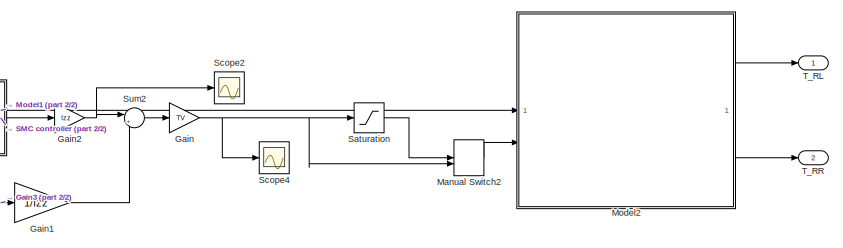
[diagram: root canvas - part 1/2, middle right region]
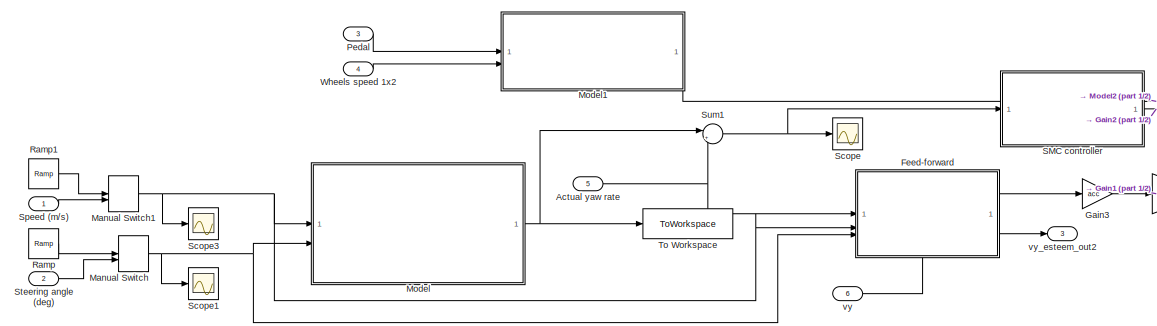
[diagram: root canvas - part 2/2, left side, full height]
MODEL slx_aaea44730ccc
KIND model
CONFIG AbsTol = auto
CONFIG EnableMultiTasking = off
CONFIG FixedStep = auto
CONFIG MaxStep = 0.01
CONFIG MinStep = auto
CONFIG RelTol = 1e-3
CONFIG SampleTimeConstraint = Unconstrained
CONFIG SolverName = FixedStepAuto
CONFIG StartTime = 0.0
CONFIG StopTime = 10.0
BLOCK [Inport] Actual yaw rate
  Port = 5
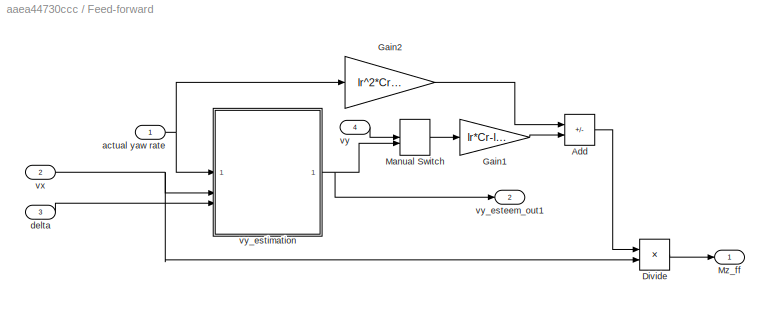
BLOCK [SubSystem] Feed-forward
  NameLocation = top
  PortSchema = {"entries":[{"content":{"sides":[{"content":{"connectorIds":["In1","In2","In3"]},"type":"ConnectorPlacement.EquallySpacedRectSide","uuid":"af8368cf-4f84-4250-9673-79f62898b3cc"},{"content":{"connectorIds":["Out1","Out2"],"side":"RIGHT"},"type":"ConnectorPlacement.EquallySpacedRectSide","uuid":"09f02962-5c7c-4455-ad81-befc240d6e55"},{"content":{"side":"TOP"},"type":"ConnectorPlacement.EquallySpaced...<+390ch>
BLOCK [Sum] Feed-forward/Add
  IconShape = rectangular
  Inputs = +-
BLOCK [Product] Feed-forward/Divide
  Inputs = */
BLOCK [Gain] Feed-forward/Gain1
  Gain = lr*Cr-lf*Cf
BLOCK [Gain] Feed-forward/Gain2
  Gain = lr^2*Cr+lf^2*Cf
BLOCK [ManualSwitch] Feed-forward/Manual Switch
  CurrentSetting = 0
BLOCK [Outport] Feed-forward/Mz_ff
BLOCK [Inport] Feed-forward/actual yaw rate
BLOCK [Inport] Feed-forward/delta
  Port = 3
BLOCK [Inport] Feed-forward/vx
  Port = 2
BLOCK [Inport] Feed-forward/vy
  Port = 4
BLOCK [Outport] Feed-forward/vy_esteem_out1
  Port = 2
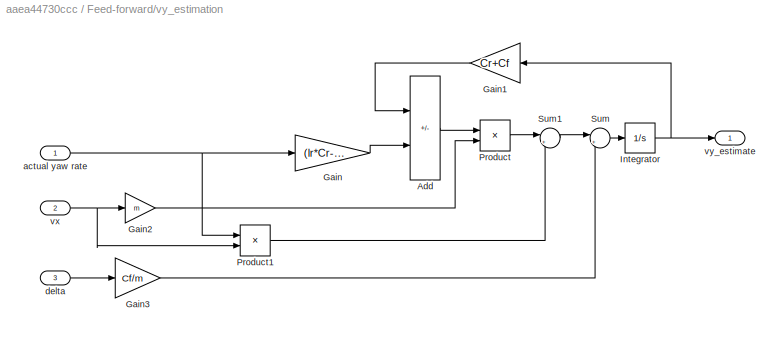
BLOCK [SubSystem] Feed-forward/vy_estimation
BLOCK [Sum] Feed-forward/vy_estimation/Add
  IconShape = rectangular
  Inputs = -+
BLOCK [Gain] Feed-forward/vy_estimation/Gain
  Gain = (lr*Cr-lf*Cf)
BLOCK [Gain] Feed-forward/vy_estimation/Gain1
  Gain = Cr+Cf
BLOCK [Gain] Feed-forward/vy_estimation/Gain2
  Gain = m
BLOCK [Gain] Feed-forward/vy_estimation/Gain3
  Gain = Cf/m
BLOCK [Integrator] Feed-forward/vy_estimation/Integrator
BLOCK [Product] Feed-forward/vy_estimation/Product
  Inputs = */
BLOCK [Product] Feed-forward/vy_estimation/Product1
BLOCK [Sum] Feed-forward/vy_estimation/Sum
  Inputs = |++
BLOCK [Sum] Feed-forward/vy_estimation/Sum1
  Inputs = |+-
BLOCK [Inport] Feed-forward/vy_estimation/actual yaw rate
BLOCK [Inport] Feed-forward/vy_estimation/delta
  Port = 3
BLOCK [Inport] Feed-forward/vy_estimation/vx
  Port = 2
BLOCK [Outport] Feed-forward/vy_estimation/vy_estimate
BLOCK [Gain] Gain
  Gain = TV
BLOCK [Gain] Gain1
  Gain = 1/Izz
BLOCK [Gain] Gain2
  Gain = Izz
BLOCK [Gain] Gain3
  Gain = acc
BLOCK [ManualSwitch] Manual Switch
  CurrentSetting = 0
BLOCK [ManualSwitch] Manual Switch1
  CurrentSetting = 0
BLOCK [ManualSwitch] Manual Switch2
  CurrentSetting = 0
BLOCK [ModelReference] Model
  ModelNameDialog = phi_ref.slx
  ModelReferenceVersion = 1.22
BLOCK [ModelReference] Model1
  ModelNameDialog = consigne_couple.slx
  ModelReferenceVersion = 1.13
BLOCK [ModelReference] Model2
  ModelNameDialog = alloc_couple.slx
  ModelReferenceVersion = 1.5
BLOCK [Inport] Pedal
  Port = 3
BLOCK [Reference] Ramp  REF=simulink/Sources/Ramp
  SourceBlock = simulink/Sources/Ramp
  SourceType = Ramp
BLOCK [Reference] Ramp1  REF=simulink/Sources/Ramp
  SourceBlock = simulink/Sources/Ramp
  SourceType = Ramp
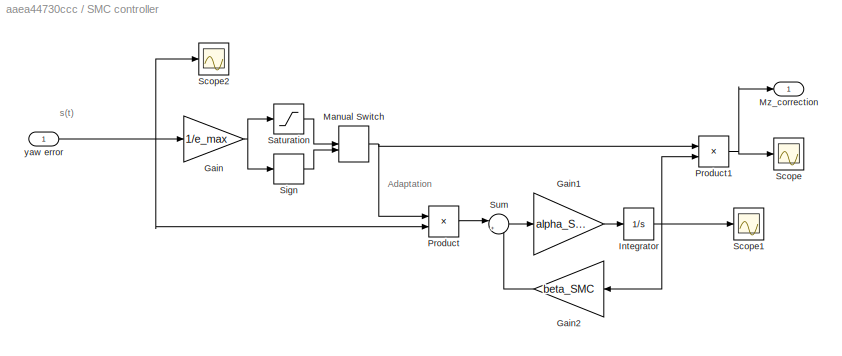
BLOCK [SubSystem] SMC controller
BLOCK [Gain] SMC controller/Gain
  Gain = 1/e_max
BLOCK [Gain] SMC controller/Gain1
  Gain = alpha_SMC
BLOCK [Gain] SMC controller/Gain2
  Gain = beta_SMC
BLOCK [Integrator] SMC controller/Integrator
  InitialCondition = gamma0
BLOCK [ManualSwitch] SMC controller/Manual Switch
BLOCK [Outport] SMC controller/Mz_correction
BLOCK [Product] SMC controller/Product
BLOCK [Product] SMC controller/Product1
BLOCK [Saturate] SMC controller/Saturation
  LowerLimit = -1
  UpperLimit = 1
BLOCK [Scope] SMC controller/Scope
  Floating = off
  NumInputPorts = 1
  ScopeSpecificationString = Simulink.scopes.TimeScopeBlockCfg('CurrentConfiguration', extmgr.ConfigurationSet(extmgr.Configuration('Core','General UI',true),extmgr.Configuration('Core','Source UI',true),extmgr.Configuration('Sources','WiredSimulink',true,'DataLoggingVariableName','ScopeData1'),extmgr.Configuration('Visuals','Time Domain',true,'SerializedDisplays',{struct('MinYLimReal','-47.32708','MaxYLimReal','50.04379','YL...<+1491ch>
BLOCK [Scope] SMC controller/Scope1
  Floating = off
  NumInputPorts = 1
  ScopeSpecificationString = Simulink.scopes.TimeScopeBlockCfg('CurrentConfiguration', extmgr.ConfigurationSet(extmgr.Configuration('Core','General UI',true),extmgr.Configuration('Core','Source UI',true),extmgr.Configuration('Sources','WiredSimulink',true,'DataLoggingVariableName','ScopeData1'),extmgr.Configuration('Visuals','Time Domain',true,'SerializedDisplays',{struct('MinYLimReal','-0.00907','MaxYLimReal','0.08167','YLab...<+1532ch>
BLOCK [Scope] SMC controller/Scope2
  Floating = off
  NumInputPorts = 1
  ScopeSpecificationString = Simulink.scopes.TimeScopeBlockCfg('CurrentConfiguration', extmgr.ConfigurationSet(extmgr.Configuration('Core','General UI',true),extmgr.Configuration('Core','Source UI',true),extmgr.Configuration('Sources','WiredSimulink',true,'DataLoggingVariableName','ScopeData2'),extmgr.Configuration('Visuals','Time Domain',true,'SerializedDisplays',{struct('MinYLimReal','-1.21529','MaxYLimReal','1.11367','YLab...<+1530ch>
BLOCK [Signum] SMC controller/Sign
BLOCK [Sum] SMC controller/Sum
  Inputs = |+-
BLOCK [Inport] SMC controller/yaw error
BLOCK [Saturate] Saturation
  LowerLimit = -400
  UpperLimit = 400
BLOCK [Scope] Scope
  Floating = off
  NumInputPorts = 1
  ScopeSpecificationString = Simulink.scopes.TimeScopeBlockCfg('CurrentConfiguration', extmgr.ConfigurationSet(extmgr.Configuration('Core','General UI',true),extmgr.Configuration('Core','Source UI',true),extmgr.Configuration('Sources','WiredSimulink',true,'DataLoggingVariableName','ScopeData2'),extmgr.Configuration('Visuals','Time Domain',true,'SerializedDisplays',{struct('MinYLimReal','-0.13529','MaxYLimReal','0.13652','YLab...<+1526ch>
BLOCK [Scope] Scope1
  Floating = off
  NumInputPorts = 1
  ScopeSpecificationString = Simulink.scopes.TimeScopeBlockCfg('CurrentConfiguration', extmgr.ConfigurationSet(extmgr.Configuration('Core','General UI',true),extmgr.Configuration('Core','Source UI',true),extmgr.Configuration('Sources','WiredSimulink',true,'DataLoggingVariableName','ScopeData1'),extmgr.Configuration('Visuals','Time Domain',true,'SerializedDisplays',{struct('MinYLimReal','-1.75','MaxYLimReal','15.75','YLabelRea...<+1478ch>
BLOCK [Scope] Scope2
  Floating = off
  NumInputPorts = 1
  ScopeSpecificationString = Simulink.scopes.TimeScopeBlockCfg('CurrentConfiguration', extmgr.ConfigurationSet(extmgr.Configuration('Core','General UI',true),extmgr.Configuration('Core','Source UI',true),extmgr.Configuration('Sources','WiredSimulink',true,'DataLoggingVariableName','ScopeData3'),extmgr.Configuration('Visuals','Time Domain',true,'SerializedDisplays',{struct('MinYLimReal','-5763.61136','MaxYLimReal','6006.86338'...<+1519ch>
BLOCK [Scope] Scope3
  Floating = off
  NumInputPorts = 1
  ScopeSpecificationString = Simulink.scopes.TimeScopeBlockCfg('CurrentConfiguration', extmgr.ConfigurationSet(extmgr.Configuration('Core','General UI',true),extmgr.Configuration('Core','Source UI',true),extmgr.Configuration('Sources','WiredSimulink',true,'DataLoggingVariableName','ScopeData1'),extmgr.Configuration('Visuals','Time Domain',true,'SerializedDisplays',{struct('MinYLimReal','11.61135','MaxYLimReal','13.07415','YLa...<+1619ch>
BLOCK [Scope] Scope4
  Floating = off
  NumInputPorts = 1
  ScopeSpecificationString = Simulink.scopes.TimeScopeBlockCfg('CurrentConfiguration', extmgr.ConfigurationSet(extmgr.Configuration('Core','General UI',true),extmgr.Configuration('Core','Source UI',true),extmgr.Configuration('Sources','WiredSimulink',true,'DataLoggingVariableName','ScopeData4'),extmgr.Configuration('Visuals','Time Domain',true,'SerializedDisplays',{struct('MinYLimReal','-5758.54672','MaxYLimReal','6156.72442'...<+1518ch>
BLOCK [Inport] Speed (m//s)
BLOCK [Inport] Steering angle (deg)
  Port = 2
BLOCK [Sum] Sum1
  Inputs = |+-
BLOCK [Sum] Sum2
  Inputs = |++
BLOCK [Outport] T_RL
BLOCK [Outport] T_RR
  Port = 2
BLOCK [ToWorkspace] To Workspace
  FixptAsFi = on
  MaxDataPoints = inf
  SampleTime = -1
  SaveFormat = Structure With Time
  VariableName = target_yaw
BLOCK [Inport] Wheels speed 1x2
  Port = 4
BLOCK [Inport] vy
  Port = 6
BLOCK [Outport] vy_esteem_out2
  Port = 3
ANNOTATION SMC controller: Adaptation
ANNOTATION SMC controller: s(t)
NET Actual yaw rate:1 -> Feed-forward:1, Sum1:2
LINE Feed-forward/Add:1 -> Feed-forward/Divide:1
LINE Feed-forward/Divide:1 -> Feed-forward/Mz_ff:1
LINE Feed-forward/Gain1:1 -> Feed-forward/Add:2
LINE Feed-forward/Gain2:1 -> Feed-forward/Add:1
LINE Feed-forward/Manual Switch:1 -> Feed-forward/Gain1:1
NET Feed-forward/actual yaw rate:1 -> Feed-forward/Gain2:1, Feed-forward/vy_estimation:1
LINE Feed-forward/delta:1 -> Feed-forward/vy_estimation:3
NET Feed-forward/vx:1 -> Feed-forward/Divide:2, Feed-forward/vy_estimation:2
LINE Feed-forward/vy:1 -> Feed-forward/Manual Switch:1
LINE Feed-forward/vy_estimation/Add:1 -> Feed-forward/vy_estimation/Product:1
LINE Feed-forward/vy_estimation/Gain1:1 -> Feed-forward/vy_estimation/Add:1
LINE Feed-forward/vy_estimation/Gain2:1 -> Feed-forward/vy_estimation/Product:2
LINE Feed-forward/vy_estimation/Gain3:1 -> Feed-forward/vy_estimation/Sum:2
LINE Feed-forward/vy_estimation/Gain:1 -> Feed-forward/vy_estimation/Add:2
NET Feed-forward/vy_estimation/Integrator:1 -> Feed-forward/vy_estimation/Gain1:1, Feed-forward/vy_estimation/vy_estimate:1
LINE Feed-forward/vy_estimation/Product1:1 -> Feed-forward/vy_estimation/Sum1:2
LINE Feed-forward/vy_estimation/Product:1 -> Feed-forward/vy_estimation/Sum1:1
LINE Feed-forward/vy_estimation/Sum1:1 -> Feed-forward/vy_estimation/Sum:1
LINE Feed-forward/vy_estimation/Sum:1 -> Feed-forward/vy_estimation/Integrator:1
NET Feed-forward/vy_estimation/actual yaw rate:1 -> Feed-forward/vy_estimation/Gain:1, Feed-forward/vy_estimation/Product1:1
LINE Feed-forward/vy_estimation/delta:1 -> Feed-forward/vy_estimation/Gain3:1
NET Feed-forward/vy_estimation/vx:1 -> Feed-forward/vy_estimation/Gain2:1, Feed-forward/vy_estimation/Product1:2
NET Feed-forward/vy_estimation:1 -> Feed-forward/Manual Switch:2, Feed-forward/vy_esteem_out1:1
LINE Feed-forward:1 -> Gain3:1
LINE Feed-forward:2 -> vy_esteem_out2:1
LINE Gain1:1 -> Sum2:2
NET Gain2:1 -> Scope2:1, Sum2:1
LINE Gain3:1 -> Gain1:1
NET Gain:1 -> Manual Switch2:2, Saturation:1, Scope4:1
NET Manual Switch1:1 -> Feed-forward:2, Model:1, Scope3:1
LINE Manual Switch2:1 -> Model2:2
NET Manual Switch:1 -> Feed-forward:3, Model:2, Scope1:1
LINE Model1:1 -> Model2:1
LINE Model2:1 -> T_RL:1
LINE Model2:2 -> T_RR:1
NET Model:1 -> Sum1:1, To Workspace:1
LINE Pedal:1 -> Model1:1
LINE Ramp1:1 -> Manual Switch1:1
LINE Ramp:1 -> Manual Switch:1
LINE SMC controller/Gain1:1 -> SMC controller/Integrator:1
LINE SMC controller/Gain2:1 -> SMC controller/Sum:2
NET SMC controller/Gain:1 -> SMC controller/Saturation:1, SMC controller/Sign:1
NET SMC controller/Integrator:1 -> SMC controller/Gain2:1, SMC controller/Product1:2, SMC controller/Scope1:1
NET SMC controller/Manual Switch:1 -> SMC controller/Product1:1, SMC controller/Product:1
NET SMC controller/Product1:1 -> SMC controller/Mz_correction:1, SMC controller/Scope:1
LINE SMC controller/Product:1 -> SMC controller/Sum:1
LINE SMC controller/Saturation:1 -> SMC controller/Manual Switch:1
LINE SMC controller/Sign:1 -> SMC controller/Manual Switch:2
LINE SMC controller/Sum:1 -> SMC controller/Gain1:1
NET SMC controller/yaw error:1 -> SMC controller/Gain:1, SMC controller/Product:2, SMC controller/Scope2:1
LINE SMC controller:1 -> Gain2:1
LINE Saturation:1 -> Manual Switch2:1
LINE Speed (m//s):1 -> Manual Switch1:2
LINE Steering angle (deg):1 -> Manual Switch:2
NET Sum1:1 -> SMC controller:1, Scope:1
LINE Sum2:1 -> Gain:1
LINE Wheels speed 1x2:1 -> Model1:2
LINE vy:1 -> Feed-forward:4
note: NET lines group one-source signal fan-out (src -> all destinations, sorted); 1:1 wires keep LINE
